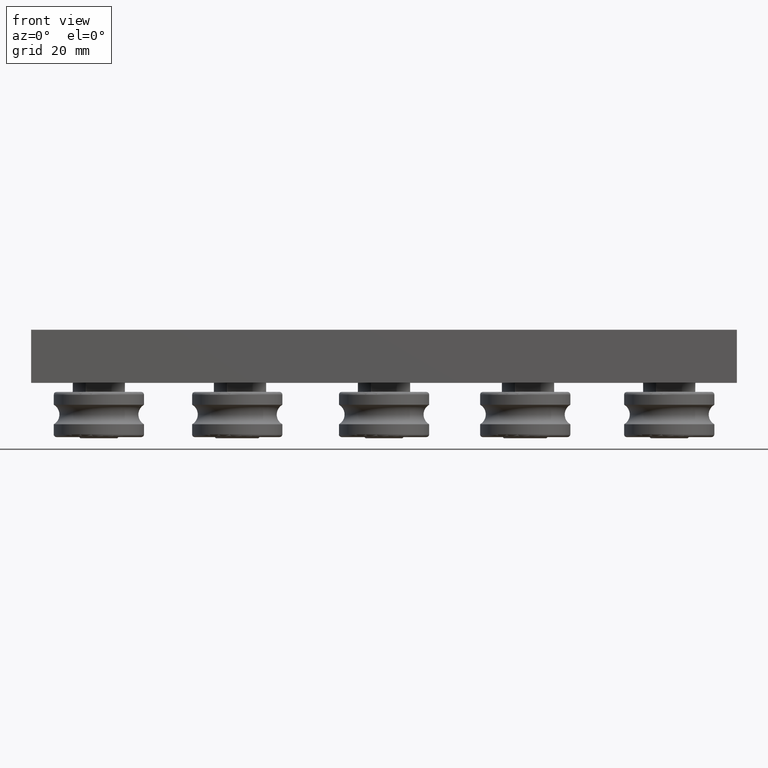
[diagram: clean part render]
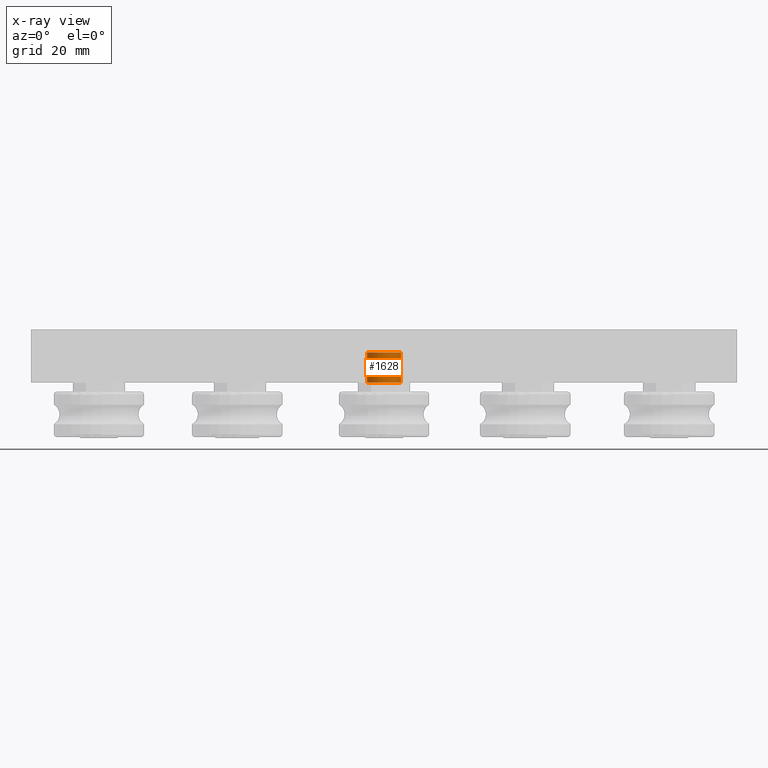
[diagram: x-ray — body ghosted, one internal face saturated and labeled with its STEP entity id]
A machine part, front view, then the same camera in x-ray: the body is ghosted and one INTERNAL B-rep face — a face not visible from any outside direction — is saturated and labeled: STEP entity #1628.
In plain terms, the highlighted cylindrical surface (bore or boss wall) has radius 3 mm, axis along (0, 0, 1).
Its self-contained STEP definition (entity closure, byte-faithful):
#252=FACE_OUTER_BOUND('',#357,.T.);
#357=EDGE_LOOP('',(#1189,#1190,#1191,#1192));
#496=LINE('',#2696,#602);
#602=VECTOR('',#2151,3.);
#714=CIRCLE('',#1888,3.);
#716=CIRCLE('',#1892,3.);
#815=VERTEX_POINT('',#2688);
#817=VERTEX_POINT('',#2695);
#962=EDGE_CURVE('',#815,#815,#714,.T.);
#965=EDGE_CURVE('',#815,#817,#496,.T.);
#966=EDGE_CURVE('',#817,#817,#716,.T.);
#1189=ORIENTED_EDGE('',*,*,#962,.T.);
#1190=ORIENTED_EDGE('',*,*,#965,.T.);
#1191=ORIENTED_EDGE('',*,*,#966,.F.);
#1192=ORIENTED_EDGE('',*,*,#965,.F.);
#1592=CYLINDRICAL_SURFACE('',#1891,3.);
#1628=ADVANCED_FACE('',(#252),#1592,.F.);
#1888=AXIS2_PLACEMENT_3D('',#2689,#2142,#2143);
#1891=AXIS2_PLACEMENT_3D('',#2694,#2149,#2150);
#1892=AXIS2_PLACEMENT_3D('',#2697,#2152,#2153);
#2142=DIRECTION('center_axis',(0.,0.,1.));
#2143=DIRECTION('ref_axis',(1.,0.,0.));
#2149=DIRECTION('center_axis',(0.,0.,1.));
#2150=DIRECTION('ref_axis',(1.,0.,0.));
#2151=DIRECTION('',(0.,0.,-1.));
#2152=DIRECTION('center_axis',(0.,0.,1.));
#2153=DIRECTION('ref_axis',(1.,0.,0.));
#2688=CARTESIAN_POINT('',(-3.,0.5,0.699999999999997));
#2689=CARTESIAN_POINT('Origin',(0.,0.5,0.699999999999997));
#2694=CARTESIAN_POINT('Origin',(0.,0.5,-123.742049189508));
#2695=CARTESIAN_POINT('',(-3.,0.5,-4.70000000000001));
#2696=CARTESIAN_POINT('',(-3.,0.5,-123.742049189508));
#2697=CARTESIAN_POINT('Origin',(0.,0.5,-4.70000000000001));